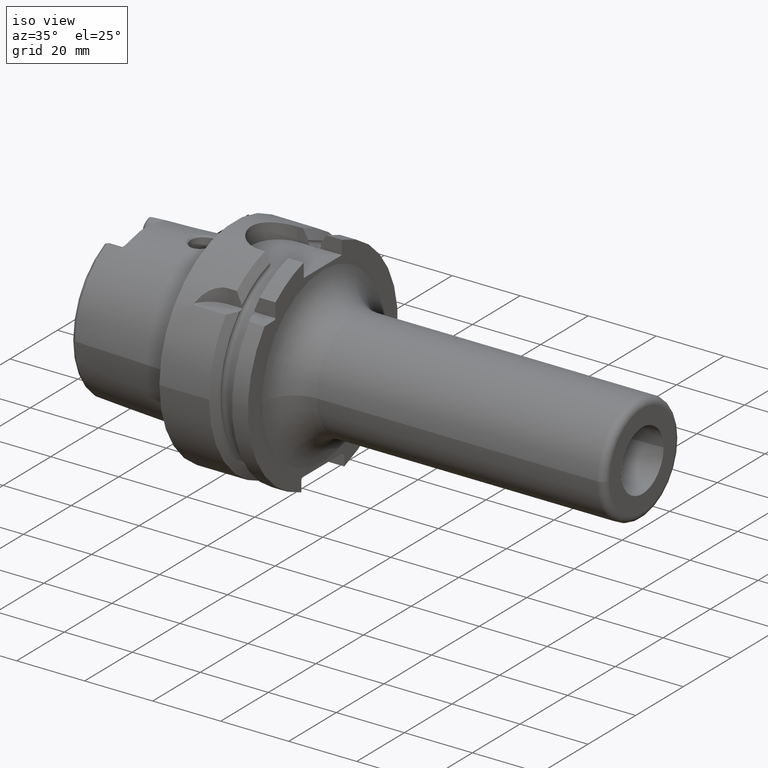
[diagram: clean part render]
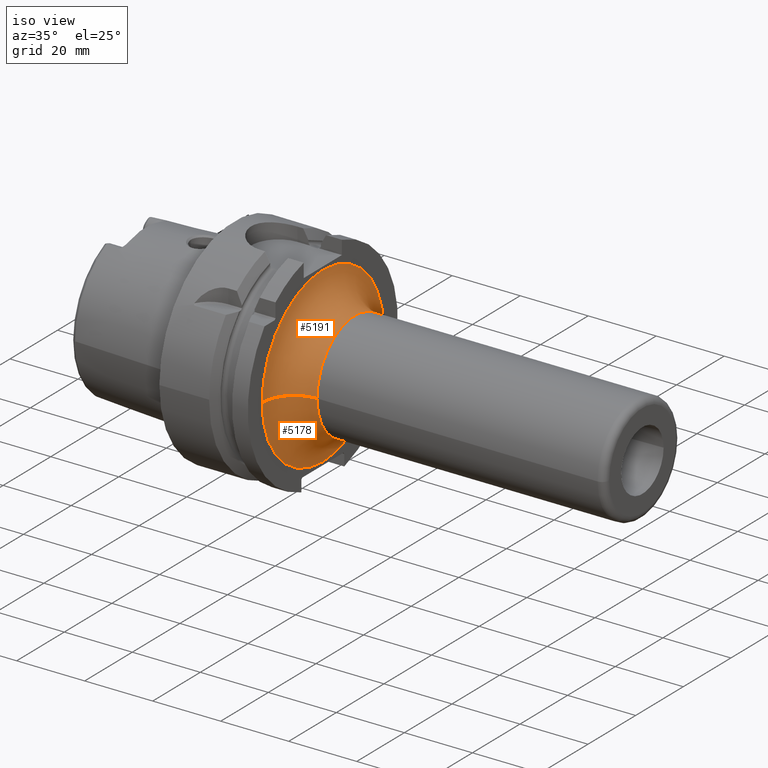
[diagram: same view with one multi-face feature highlighted, each face labeled with its STEP entity id]
A machine part, iso view. The highlighted faces form ONE feature: a constant-radius fillet chain: 2 tangent blend faces with common blend radius 9.5 mm. The faces share edges in the B-rep.
Their STEP definitions:
[1] entity #5178 (Torus):
#1708=CARTESIAN_POINT('',(2.6E1,0.E0,0.E0));
#1709=DIRECTION('',(1.E0,0.E0,0.E0));
#1710=DIRECTION('',(0.E0,-1.E0,0.E0));
#1711=AXIS2_PLACEMENT_3D('',#1708,#1709,#1710);
#1956=CARTESIAN_POINT('',(3.55E1,-2.55E1,3.638200851697E-13));
#1957=DIRECTION('',(0.E0,-1.426723322817E-14,-1.E0));
#1958=DIRECTION('',(-1.E0,0.E0,0.E0));
#1959=AXIS2_PLACEMENT_3D('',#1956,#1957,#1958);
#1961=CARTESIAN_POINT('',(3.55E1,2.55E1,-3.668593206996E-13));
#1962=DIRECTION('',(0.E0,1.438692914801E-14,1.E0));
#1963=DIRECTION('',(-1.E0,0.E0,0.E0));
#1964=AXIS2_PLACEMENT_3D('',#1961,#1962,#1963);
#1995=CARTESIAN_POINT('',(3.55E1,0.E0,0.E0));
#1996=DIRECTION('',(1.E0,0.E0,0.E0));
#1997=DIRECTION('',(0.E0,-1.E0,0.E0));
#1998=AXIS2_PLACEMENT_3D('',#1995,#1996,#1997);
#3064=CARTESIAN_POINT('',(2.6E1,-2.55E1,0.E0));
#3065=CARTESIAN_POINT('',(2.6E1,2.55E1,0.E0));
#3066=VERTEX_POINT('',#3064);
#3067=VERTEX_POINT('',#3065);
#3068=CARTESIAN_POINT('',(3.55E1,-1.6E1,0.E0));
#3069=CARTESIAN_POINT('',(3.55E1,1.6E1,0.E0));
#3070=VERTEX_POINT('',#3068);
#3071=VERTEX_POINT('',#3069);
#5164=CARTESIAN_POINT('',(3.55E1,0.E0,0.E0));
#5165=DIRECTION('',(1.E0,0.E0,0.E0));
#5166=DIRECTION('',(0.E0,-9.999884548084E-1,4.805231507474E-3));
#5167=AXIS2_PLACEMENT_3D('',#5164,#5165,#5166);
#5168=TOROIDAL_SURFACE('',#5167,2.55E1,9.5E0);
#5169=ORIENTED_EDGE('',*,*,#4871,.F.);
#5171=ORIENTED_EDGE('',*,*,#5170,.T.);
#5173=ORIENTED_EDGE('',*,*,#5172,.T.);
#5175=ORIENTED_EDGE('',*,*,#5174,.F.);
#5176=EDGE_LOOP('',(#5169,#5171,#5173,#5175));
#5177=FACE_OUTER_BOUND('',#5176,.F.);
#5178=ADVANCED_FACE('',(#5177),#5168,.F.);
#1712=CIRCLE('',#1711,2.55E1);
#1960=CIRCLE('',#1959,9.5E0);
#1965=CIRCLE('',#1964,9.5E0);
#1999=CIRCLE('',#1998,1.6E1);
#4871=EDGE_CURVE('',#3066,#3067,#1712,.T.);
#5170=EDGE_CURVE('',#3066,#3070,#1960,.T.);
#5172=EDGE_CURVE('',#3070,#3071,#1999,.T.);
#5174=EDGE_CURVE('',#3067,#3071,#1965,.T.);
[2] entity #5191 (Torus):
#1713=CARTESIAN_POINT('',(2.6E1,0.E0,0.E0));
#1714=DIRECTION('',(1.E0,0.E0,0.E0));
#1715=DIRECTION('',(0.E0,1.E0,0.E0));
#1716=AXIS2_PLACEMENT_3D('',#1713,#1714,#1715);
#1956=CARTESIAN_POINT('',(3.55E1,-2.55E1,3.638200851697E-13));
#1957=DIRECTION('',(0.E0,-1.426723322817E-14,-1.E0));
#1958=DIRECTION('',(-1.E0,0.E0,0.E0));
#1959=AXIS2_PLACEMENT_3D('',#1956,#1957,#1958);
#1961=CARTESIAN_POINT('',(3.55E1,2.55E1,-3.668593206996E-13));
#1962=DIRECTION('',(0.E0,1.438692914801E-14,1.E0));
#1963=DIRECTION('',(-1.E0,0.E0,0.E0));
#1964=AXIS2_PLACEMENT_3D('',#1961,#1962,#1963);
#1971=CARTESIAN_POINT('',(3.55E1,0.E0,0.E0));
#1972=DIRECTION('',(1.E0,0.E0,0.E0));
#1973=DIRECTION('',(0.E0,1.E0,0.E0));
#1974=AXIS2_PLACEMENT_3D('',#1971,#1972,#1973);
#3064=CARTESIAN_POINT('',(2.6E1,-2.55E1,0.E0));
#3065=CARTESIAN_POINT('',(2.6E1,2.55E1,0.E0));
#3066=VERTEX_POINT('',#3064);
#3067=VERTEX_POINT('',#3065);
#3068=CARTESIAN_POINT('',(3.55E1,-1.6E1,0.E0));
#3069=CARTESIAN_POINT('',(3.55E1,1.6E1,0.E0));
#3070=VERTEX_POINT('',#3068);
#3071=VERTEX_POINT('',#3069);
#5179=CARTESIAN_POINT('',(3.55E1,0.E0,0.E0));
#5180=DIRECTION('',(1.E0,0.E0,0.E0));
#5181=DIRECTION('',(0.E0,9.999884548084E-1,-4.805231507475E-3));
#5182=AXIS2_PLACEMENT_3D('',#5179,#5180,#5181);
#5183=TOROIDAL_SURFACE('',#5182,2.55E1,9.5E0);
#5184=ORIENTED_EDGE('',*,*,#4873,.F.);
#5185=ORIENTED_EDGE('',*,*,#5174,.T.);
#5187=ORIENTED_EDGE('',*,*,#5186,.T.);
#5188=ORIENTED_EDGE('',*,*,#5170,.F.);
#5189=EDGE_LOOP('',(#5184,#5185,#5187,#5188));
#5190=FACE_OUTER_BOUND('',#5189,.F.);
#5191=ADVANCED_FACE('',(#5190),#5183,.F.);
#1717=CIRCLE('',#1716,2.55E1);
#1960=CIRCLE('',#1959,9.5E0);
#1965=CIRCLE('',#1964,9.5E0);
#1975=CIRCLE('',#1974,1.6E1);
#4873=EDGE_CURVE('',#3067,#3066,#1717,.T.);
#5170=EDGE_CURVE('',#3066,#3070,#1960,.T.);
#5174=EDGE_CURVE('',#3067,#3071,#1965,.T.);
#5186=EDGE_CURVE('',#3071,#3070,#1975,.T.);